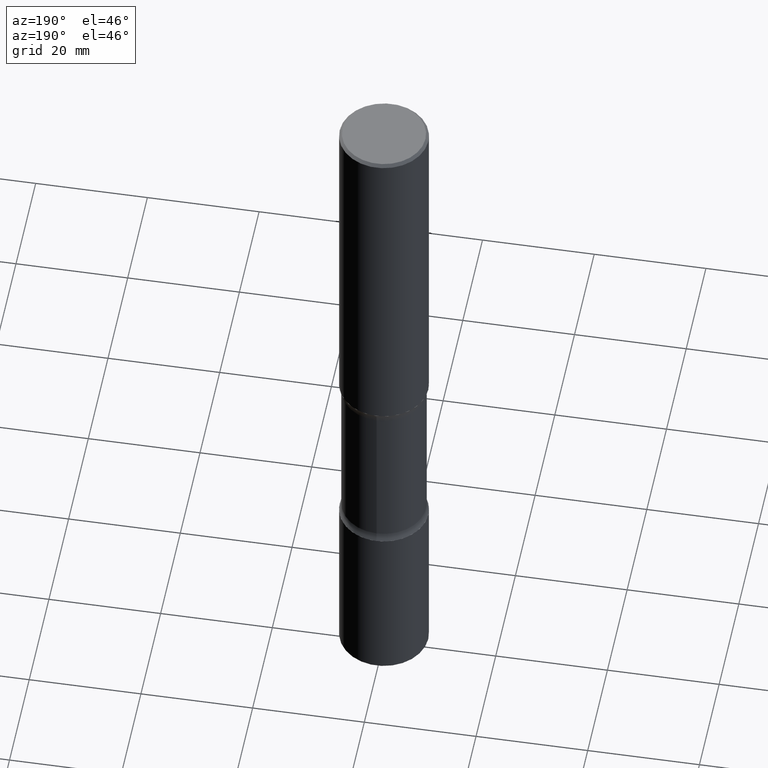
[diagram: clean part render]
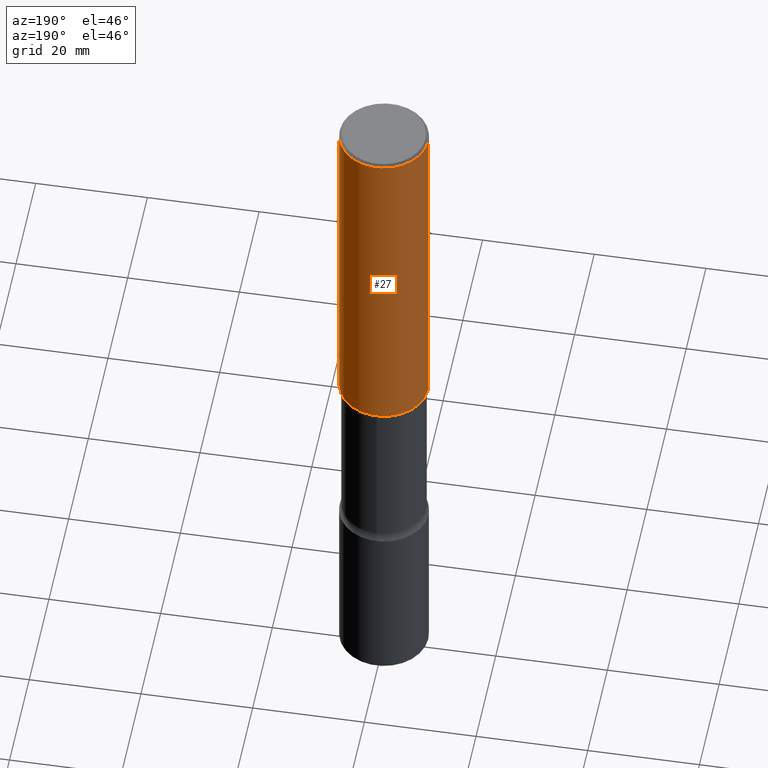
[diagram: same view with one face highlighted and labeled with its STEP entity id]
A machine part, auxiliary view. The second image highlights one B-rep face of the part: STEP entity #27.
In plain terms, the highlighted cylindrical surface (partial cylindrical patch) has radius 7.9375 mm, axis along (-0, 0, 1).
Its self-contained STEP definition (entity closure, byte-faithful):
#27 = ADVANCED_FACE ( 'NONE', ( #117 ), #420, .T. ) ;
#29 = ORIENTED_EDGE ( 'NONE', *, *, #433, .T. ) ;
#41 = DIRECTION ( 'NONE',  ( -2.445468806185136597E-29, 3.491481338843145583E-15, 1.000000000000000000 ) ) ;
#48 = VECTOR ( 'NONE', #226, 39.37007874015748143 ) ;
#83 = ORIENTED_EDGE ( 'NONE', *, *, #287, .F. ) ;
#107 = CARTESIAN_POINT ( 'NONE',  ( -0.3124999999999998890, -2.178820437692049462E-15, -2.500000000000000000 ) ) ;
#117 = FACE_OUTER_BOUND ( 'NONE', #379, .T. ) ;
#130 = DIRECTION ( 'NONE',  ( -2.445468806185136877E-29, 3.491481338843145188E-15, 1.000000000000000000 ) ) ;
#132 = CARTESIAN_POINT ( 'NONE',  ( 4.890937612370273159E-31, -6.982962677686291609E-17, -0.02000000000000000042 ) ) ;
#134 = CIRCLE ( 'NONE', #313, 0.3124999999999996669 ) ;
#152 = DIRECTION ( 'NONE',  ( 1.000000000000000000, -6.982962677686266711E-15, 4.876176775795936353E-29 ) ) ;
#159 = VERTEX_POINT ( 'NONE', #462 ) ;
#161 = AXIS2_PLACEMENT_3D ( 'NONE', #198, #41, #456 ) ;
#164 = VERTEX_POINT ( 'NONE', #427 ) ;
#198 = CARTESIAN_POINT ( 'NONE',  ( 6.113672015462842613E-29, -8.728703347107864943E-15, -2.500000000000000000 ) ) ;
#226 = DIRECTION ( 'NONE',  ( -2.445468806185136877E-29, 3.491481338843145188E-15, 1.000000000000000000 ) ) ;
#233 = DIRECTION ( 'NONE',  ( -2.445468806185136597E-29, 3.491481338843145583E-15, 1.000000000000000000 ) ) ;
#234 = ORIENTED_EDGE ( 'NONE', *, *, #510, .T. ) ;
#242 = EDGE_CURVE ( 'NONE', #159, #415, #473, .T. ) ;
#266 = LINE ( 'NONE', #357, #48 ) ;
#287 = EDGE_CURVE ( 'NONE', #415, #164, #134, .T. ) ;
#304 = DIRECTION ( 'NONE',  ( -2.445468806185136597E-29, 3.491481338843145583E-15, 1.000000000000000000 ) ) ;
#312 = CARTESIAN_POINT ( 'NONE',  ( 0.3124999999999996669, -2.213735251080464545E-15, -0.02000000000000000042 ) ) ;
#313 = AXIS2_PLACEMENT_3D ( 'NONE', #132, #304, #437 ) ;
#335 = ORIENTED_EDGE ( 'NONE', *, *, #242, .F. ) ;
#357 = CARTESIAN_POINT ( 'NONE',  ( -0.3124999999999997224, 2.220446049250311109E-15, -1.537167215704656831E-29 ) ) ;
#379 = EDGE_LOOP ( 'NONE', ( #234, #29, #83, #335 ) ) ;
#415 = VERTEX_POINT ( 'NONE', #312 ) ;
#420 = CYLINDRICAL_SURFACE ( 'NONE', #556, 0.3124999999999997224 ) ;
#427 = CARTESIAN_POINT ( 'NONE',  ( -0.3124999999999996669, 2.112346210000093077E-15, -0.02000000000000000042 ) ) ;
#433 = EDGE_CURVE ( 'NONE', #474, #164, #266, .T. ) ;
#437 = DIRECTION ( 'NONE',  ( 1.000000000000000000, -6.982962677686267499E-15, 0.000000000000000000 ) ) ;
#442 = VECTOR ( 'NONE', #130, 39.37007874015748143 ) ;
#452 = CIRCLE ( 'NONE', #161, 0.3124999999999998890 ) ;
#456 = DIRECTION ( 'NONE',  ( 1.000000000000000000, -6.982962677686268288E-15, 0.000000000000000000 ) ) ;
#462 = CARTESIAN_POINT ( 'NONE',  ( 0.3124999999999998890, -1.091087918388482329E-14, -2.500000000000000000 ) ) ;
#473 = LINE ( 'NONE', #527, #442 ) ;
#474 = VERTEX_POINT ( 'NONE', #107 ) ;
#510 = EDGE_CURVE ( 'NONE', #159, #474, #452, .T. ) ;
#527 = CARTESIAN_POINT ( 'NONE',  ( 0.3124999999999997224, -2.182175836776956375E-15, 1.523805242436228674E-29 ) ) ;
#541 = CARTESIAN_POINT ( 'NONE',  ( 0.000000000000000000, 0.000000000000000000, 0.000000000000000000 ) ) ;
#556 = AXIS2_PLACEMENT_3D ( 'NONE', #541, #233, #152 ) ;